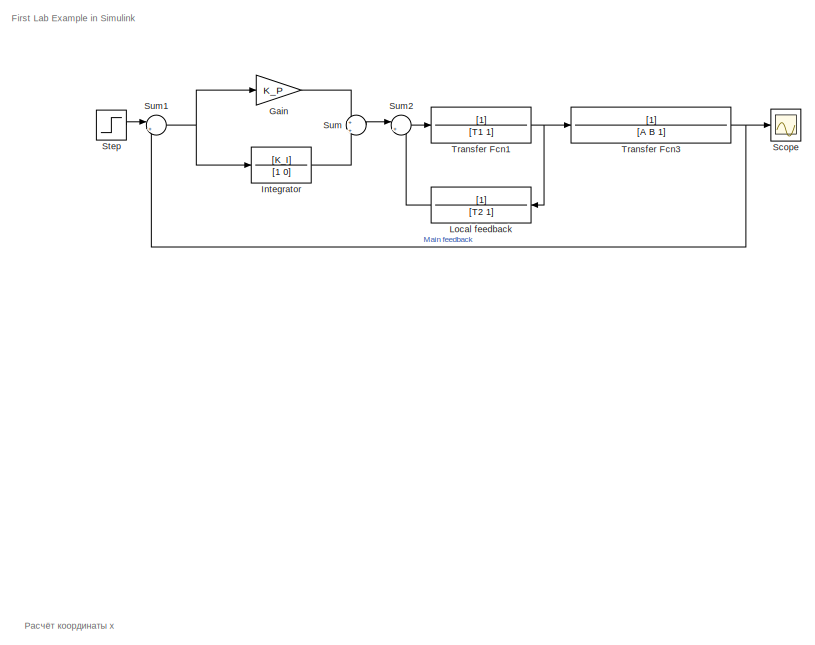
[diagram: root canvas - part 1/4, top left region]
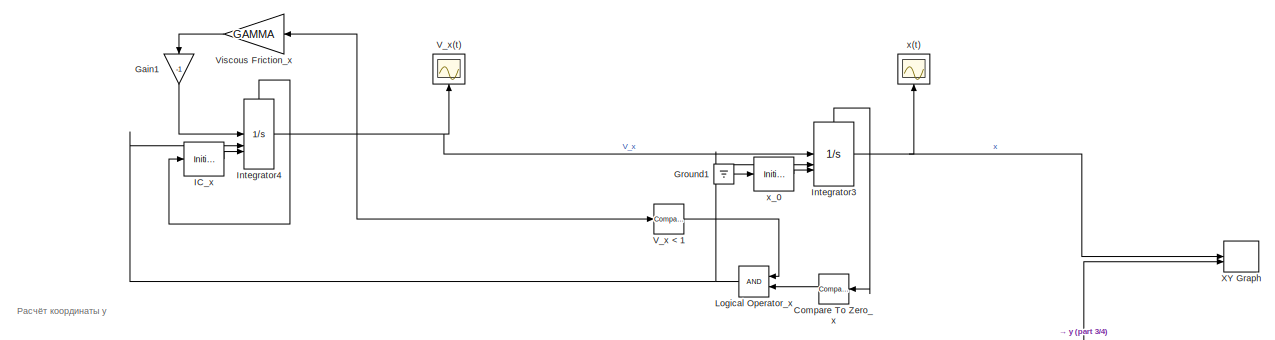
[diagram: root canvas - part 2/4, full width, middle band]
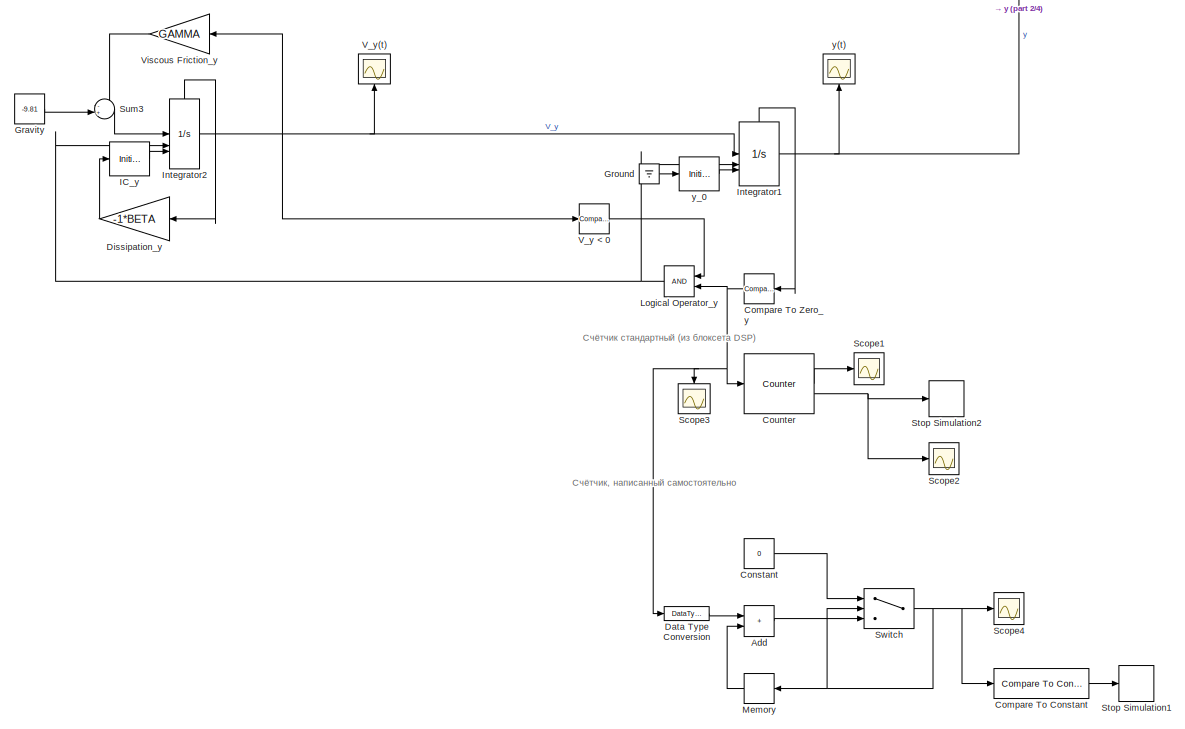
[diagram: root canvas - part 3/4, full width, middle band]
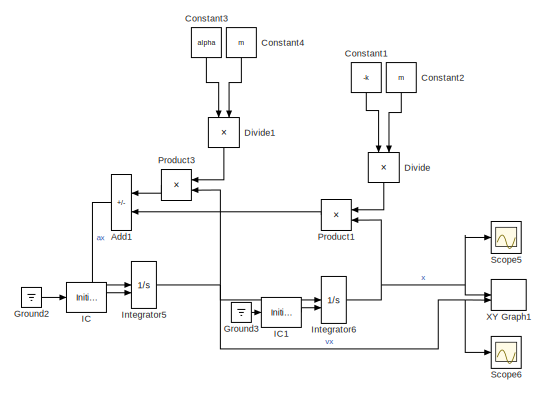
[diagram: root canvas - part 4/4, bottom left region]
MODEL slx_1bb1bf31e48f
KIND model
CONFIG AbsTol = auto
CONFIG EnableMultiTasking = off
CONFIG FixedStep = auto
CONFIG MaxStep = auto
CONFIG MinStep = auto
CONFIG RelTol = 1e-3
CONFIG SampleTimeConstraint = Unconstrained
CONFIG SolverName = ode23t
CONFIG StartTime = 0.0
CONFIG StopTime = 20
BLOCK [Sum] Add
  Commented = on
  IconShape = rectangular
BLOCK [Sum] Add1
  IconShape = rectangular
  Inputs = -+
  NameLocation = top
BLOCK [Reference] Compare To Constant  REF=simulink/Logic and Bit
Operations/Compare
To Constant
  Commented = on
  SourceBlock = simulink/Logic and Bit\nOperations/Compare\nTo Constant
  SourceType = Compare To Constant
BLOCK [Reference] Compare To Zero_x  REF=simulink/Logic and Bit
Operations/Compare
To Zero
  Commented = on
  NameLocation = top
  SourceBlock = simulink/Logic and Bit\nOperations/Compare\nTo Zero
  SourceType = Compare To Zero
BLOCK [Reference] Compare To Zero_y  REF=simulink/Logic and Bit
Operations/Compare
To Zero
  Commented = on
  NameLocation = top
  SourceBlock = simulink/Logic and Bit\nOperations/Compare\nTo Zero
  SourceType = Compare To Zero
BLOCK [Constant] Constant
  Commented = on
  Value = 0
BLOCK [Constant] Constant1
  NameLocation = left
  Value = -k
BLOCK [Constant] Constant2
  NameLocation = left
  Value = m
BLOCK [Constant] Constant3
  NameLocation = left
  Value = alpha
BLOCK [Constant] Constant4
  NameLocation = left
  Value = m
BLOCK [Reference] Counter  REF=dspswit3/Counter
  Commented = on
  SourceBlock = dspswit3/Counter
  SourceType = Counter
BLOCK [DataTypeConversion] Data Type Conversion
  Commented = on
  RndMeth = Floor
  SaturateOnIntegerOverflow = off
BLOCK [Gain] Dissipation_y
  Commented = on
  Gain = -1*BETA
BLOCK [Product] Divide
  Inputs = */
  NameLocation = left
BLOCK [Product] Divide1
  Inputs = */
  NameLocation = left
BLOCK [Gain] Gain
  Commented = on
  Gain = K_P
BLOCK [Gain] Gain1
  Commented = on
  Gain = -1
  NameLocation = left
BLOCK [Constant] Gravity
  Commented = on
  NameLocation = top
  Value = -9.81
BLOCK [Ground] Ground
  Commented = on
BLOCK [Ground] Ground1
  Commented = on
BLOCK [Ground] Ground2
BLOCK [Ground] Ground3
BLOCK [InitialCondition] IC
  Value = v_0
BLOCK [InitialCondition] IC1
  Value = x_0
BLOCK [InitialCondition] IC_x
  Commented = on
  Value = V * cos(ALPHA * pi / 180)
BLOCK [InitialCondition] IC_y
  Commented = on
  Value = V * sin(ALPHA * pi / 180)
BLOCK [TransferFcn] Integrator
  Commented = on
  Denominator = [1 0]
  Numerator = [K_I]
BLOCK [Integrator] Integrator1
  Commented = on
  ExternalReset = rising
  InitialConditionSource = external
  LimitOutput = on
  LowerSaturationLimit = 0
  ShowStatePort = on
BLOCK [Integrator] Integrator2
  Commented = on
  ExternalReset = rising
  InitialConditionSource = external
  ShowStatePort = on
BLOCK [Integrator] Integrator3
  Commented = on
  ExternalReset = rising
  InitialConditionSource = external
  LimitOutput = on
  LowerSaturationLimit = 0
  ShowStatePort = on
BLOCK [Integrator] Integrator4
  Commented = on
  ExternalReset = rising
  InitialConditionSource = external
  ShowStatePort = on
BLOCK [Integrator] Integrator5
  InitialConditionSource = external
BLOCK [Integrator] Integrator6
  InitialConditionSource = external
BLOCK [TransferFcn] Local feedback
  Commented = on
  Denominator = [T2 1]
  NameLocation = top
BLOCK [Logic] Logical Operator_x
  AllPortsSameDT = off
  Commented = on
  NameLocation = top
  OutDataTypeStr = boolean
BLOCK [Logic] Logical Operator_y
  AllPortsSameDT = off
  Commented = on
  NameLocation = top
  OutDataTypeStr = boolean
BLOCK [Memory] Memory
  Commented = on
  InitialCondition = -1
  NameLocation = top
BLOCK [Product] Product1
  NameLocation = top
BLOCK [Product] Product3
  NameLocation = top
BLOCK [Scope] Scope
  Commented = on
  Floating = off
  NumInputPorts = 1
  ScopeSpecificationString = Simulink.scopes.TimeScopeBlockCfg('CurrentConfiguration', extmgr.ConfigurationSet(extmgr.Configuration('Core','General UI',true),extmgr.Configuration('Core','Source UI',true),extmgr.Configuration('Sources','WiredSimulink',true),extmgr.Configuration('Visuals','Time Domain',true,'SerializedDisplays',{struct('MinYLimReal','-0.12524','MaxYLimReal','1.12713','YLabelReal','','MinYLimMag','0.00000','MaxY...<+1404ch>
BLOCK [Scope] Scope1
  Commented = on
  Floating = off
  NumInputPorts = 1
  ScopeSpecificationString = Simulink.scopes.TimeScopeBlockCfg('CurrentConfiguration', extmgr.ConfigurationSet(extmgr.Configuration('Core','General UI',true),extmgr.Configuration('Core','Source UI',true),extmgr.Configuration('Sources','WiredSimulink',true,'DataLoggingVariableName','ScopeData5'),extmgr.Configuration('Visuals','Time Domain',true,'SerializedDisplays',{struct('MinYLimReal','-1.25','MaxYLimReal','11.25','YLabelRea...<+1354ch>
BLOCK [Scope] Scope2
  Commented = on
  Floating = off
  NumInputPorts = 1
  ScopeSpecificationString = Simulink.scopes.TimeScopeBlockCfg('CurrentConfiguration', extmgr.ConfigurationSet(extmgr.Configuration('Core','General UI',true),extmgr.Configuration('Core','Source UI',true),extmgr.Configuration('Sources','WiredSimulink',true,'DataLoggingVariableName','ScopeData6'),extmgr.Configuration('Visuals','Time Domain',true,'SerializedDisplays',{struct('MinYLimReal','-0.125','MaxYLimReal','1.125','YLabelRe...<+1381ch>
BLOCK [Scope] Scope3
  Commented = on
  Floating = off
  NameLocation = left
  NumInputPorts = 1
  ScopeSpecificationString = Simulink.scopes.TimeScopeBlockCfg('CurrentConfiguration', extmgr.ConfigurationSet(extmgr.Configuration('Core','General UI',true),extmgr.Configuration('Core','Source UI',true),extmgr.Configuration('Sources','WiredSimulink',true,'DataLoggingVariableName','ScopeData7'),extmgr.Configuration('Visuals','Time Domain',true,'SerializedDisplays',{struct('MinYLimReal','-0.125','MaxYLimReal','1.125','YLabelRe...<+1483ch>
BLOCK [Scope] Scope4
  Commented = on
  Floating = off
  NumInputPorts = 1
  ScopeSpecificationString = Simulink.scopes.TimeScopeBlockCfg('CurrentConfiguration', extmgr.ConfigurationSet(extmgr.Configuration('Core','General UI',true),extmgr.Configuration('Core','Source UI',true),extmgr.Configuration('Sources','WiredSimulink',true,'DataLoggingVariableName','ScopeData8'),extmgr.Configuration('Visuals','Time Domain',true,'SerializedDisplays',{struct('MinYLimReal','-1.25','MaxYLimReal','11.25','YLabelRea...<+1351ch>
BLOCK [Scope] Scope5
  Floating = off
  NumInputPorts = 1
  ScopeSpecificationString = Simulink.scopes.TimeScopeBlockCfg('CurrentConfiguration', extmgr.ConfigurationSet(extmgr.Configuration('Core','General UI',true),extmgr.Configuration('Core','Source UI',true),extmgr.Configuration('Sources','WiredSimulink',true,'DataLoggingVariableName','ScopeData9'),extmgr.Configuration('Visuals','Time Domain',true,'SerializedDisplays',{struct('MinYLimReal','-3.8929','MaxYLimReal','4.05843','YLabe...<+1358ch>
BLOCK [Scope] Scope6
  Floating = off
  NumInputPorts = 1
  ScopeSpecificationString = Simulink.scopes.TimeScopeBlockCfg('CurrentConfiguration', extmgr.ConfigurationSet(extmgr.Configuration('Core','General UI',true),extmgr.Configuration('Core','Source UI',true),extmgr.Configuration('Sources','WiredSimulink',true,'DataLoggingVariableName','ScopeData10'),extmgr.Configuration('Visuals','Time Domain',true,'SerializedDisplays',{struct('MinYLimReal','-12.55524','MaxYLimReal','12.50614','Y...<+1368ch>
BLOCK [Step] Step
  Commented = on
  SampleTime = 0
  Time = 0.1
BLOCK [Stop] Stop Simulation1
  Commented = on
BLOCK [Stop] Stop Simulation2
  Commented = on
BLOCK [Sum] Sum
  Commented = on
  Inputs = +|+
  NameLocation = left
BLOCK [Sum] Sum1
  Commented = on
  Inputs = |+-
  NameLocation = top
BLOCK [Sum] Sum2
  Commented = on
  Inputs = |+-
  NameLocation = top
BLOCK [Sum] Sum3
  Commented = on
  Inputs = -+|
BLOCK [Switch] Switch
  Commented = on
  Criteria = u2 > Threshold
  InputSameDT = off
  SaturateOnIntegerOverflow = off
  Threshold = N_BOUNCES
BLOCK [TransferFcn] Transfer Fcn1
  Commented = on
  Denominator = [T1 1]
BLOCK [TransferFcn] Transfer Fcn3
  Commented = on
  Denominator = [A B 1]
BLOCK [Reference] V_x < 1  REF=simulink/Logic and Bit
Operations/Compare
To Zero
  Commented = on
  SourceBlock = simulink/Logic and Bit\nOperations/Compare\nTo Zero
  SourceType = Compare To Zero
BLOCK [Scope] V_x(t)
  Commented = on
  Floating = off
  NameLocation = top
  NumInputPorts = 1
  ScopeSpecificationString = Simulink.scopes.TimeScopeBlockCfg('CurrentConfiguration', extmgr.ConfigurationSet(extmgr.Configuration('Core','General UI',true),extmgr.Configuration('Core','Source UI',true),extmgr.Configuration('Sources','WiredSimulink',true,'DataLoggingVariableName','ScopeData3'),extmgr.Configuration('Visuals','Time Domain',true,'SerializedDisplays',{struct('MinYLimReal','-0.12825','MaxYLimReal','2.89002','YLab...<+1437ch>
BLOCK [Reference] V_y < 0  REF=simulink/Logic and Bit
Operations/Compare
To Zero
  Commented = on
  SourceBlock = simulink/Logic and Bit\nOperations/Compare\nTo Zero
  SourceType = Compare To Zero
BLOCK [Scope] V_y(t)
  Commented = on
  Floating = off
  NameLocation = top
  NumInputPorts = 1
  ScopeSpecificationString = Simulink.scopes.TimeScopeBlockCfg('CurrentConfiguration', extmgr.ConfigurationSet(extmgr.Configuration('Core','General UI',true),extmgr.Configuration('Core','Source UI',true),extmgr.Configuration('Sources','WiredSimulink',true,'DataLoggingVariableName','ScopeData2'),extmgr.Configuration('Visuals','Time Domain',true,'SerializedDisplays',{struct('MinYLimReal','-9.47544','MaxYLimReal','11.78534','YLa...<+1441ch>
BLOCK [Gain] Viscous Friction_x
  Commented = on
  Gain = GAMMA
  NameLocation = top
BLOCK [Gain] Viscous Friction_y
  Commented = on
  Gain = GAMMA
  NameLocation = top
BLOCK [Record] XY Graph
  Commented = on
  CompatibilityTag = XY
  FileSettingsInternal = {"entries":[{"content":{"excelSettings":{"content":{},"type":"Streamout.ExcelSettings"}},"type":"Streamout.FileSettingStorage","uuid":"8b932d15-5d1b-44a0-aee4-739872d0217d"}],"packageUris":["http://schema.mathworks.com/mf0/streamout_blocks/R2020a"],"version":"1.0"}
  Layout = [1 1]
  SignalsInternal = {"entries":[{"content":{},"type":"RecordBlkView.InputSignals","uuid":"97ee66de-383f-4640-baf3-7853e3ab4a83"}],"packageUris":["http://schema.mathworks.com/mf0/streamout_blocks/R2020a"],"version":"1.0"}
  VisualizationBindings = {"xyplotplugin":{"info":[{"series":[],"subplotID":1}]}}
BLOCK [Record] XY Graph1
  CompatibilityTag = XY
  FileSettingsInternal = {"entries":[{"content":{"excelSettings":{"content":{},"type":"Streamout.ExcelSettings"}},"type":"Streamout.FileSettingStorage","uuid":"c0ddccff-8cc1-44de-9fbf-99026fa81808"}],"packageUris":["http://schema.mathworks.com/mf0/streamout_blocks/R2020a"],"version":"1.0"}
  Layout = [1 1]
  SignalsInternal = {"entries":[{"content":{"signals":[{"content":{"blockPath":["demo_simulink_2022b/XY Graph1"],"dimensions":[1],"domain":"demo_simulink_2022b/XY Graph1","lineColor":"#a2142f","plots":[1],"port":1,"signalID":597,"signalName":"x"},"type":"RecordBlkView.Signal","uuid":"da48b154-fba1-42e9-a9ef-7762f4a936d7"},{"content":{"blockPath":["demo_simulink_2022b/XY Graph1"],"dimensions":[1],"domain":"demo_simuli...<+350ch>
  VisualizationBindings = {"xyplotplugin":{"info":[{"series":[{"bindingParametersList":[{"parameter":"X-Axis","signalID":597,"signalName":"x"},{"parameter":"Y-Axis","signalID":600,"signalName":"vx"}],"seriesID":24344}],"subplotID":1}]}}
BLOCK [Scope] x(t)
  Commented = on
  Floating = off
  NameLocation = top
  NumInputPorts = 1
  ScopeSpecificationString = Simulink.scopes.TimeScopeBlockCfg('CurrentConfiguration', extmgr.ConfigurationSet(extmgr.Configuration('Core','General UI',true),extmgr.Configuration('Core','Source UI',true),extmgr.Configuration('Sources','WiredSimulink',true,'DataLoggingVariableName','ScopeData4'),extmgr.Configuration('Visuals','Time Domain',true,'SerializedDisplays',{struct('MinYLimReal','-0.60693','MaxYLimReal','5.46234','YLab...<+1436ch>
BLOCK [InitialCondition] x_0
  Commented = on
  Value = 0
BLOCK [Scope] y(t)
  Commented = on
  Floating = off
  NameLocation = top
  NumInputPorts = 1
  ScopeSpecificationString = Simulink.scopes.TimeScopeBlockCfg('CurrentConfiguration', extmgr.ConfigurationSet(extmgr.Configuration('Core','General UI',true),extmgr.Configuration('Core','Source UI',true),extmgr.Configuration('Sources','WiredSimulink',true,'DataLoggingVariableName','ScopeData1'),extmgr.Configuration('Visuals','Time Domain',true,'SerializedDisplays',{struct('MinYLimReal','-0.60693','MaxYLimReal','5.46234','YLab...<+1436ch>
BLOCK [InitialCondition] y_0
  Commented = on
  Value = 0
ANNOTATION (root): First Lab Example in Simulink
ANNOTATION (root): Расчёт координаты x
ANNOTATION (root): Расчёт координаты y
ANNOTATION (root): Счётчик стандартный (из блоксета DSP)
ANNOTATION (root): Счётчик, написанный самостоятельно
LINE Add1:1 -> Integrator5:1
LINE Add:1 -> Switch:3
LINE Compare To Constant:1 -> Stop Simulation1:1
LINE Compare To Zero_x:1 -> Logical Operator_x:2
NET Compare To Zero_y:1 -> Counter:1, Data Type Conversion:1, Logical Operator_y:2, Scope3:1
LINE Constant1:1 -> Divide:1
LINE Constant2:1 -> Divide:2
LINE Constant3:1 -> Divide1:1
LINE Constant4:1 -> Divide1:2
LINE Constant:1 -> Switch:1
LINE Counter:1 -> Scope1:1
NET Counter:2 -> Scope2:1, Stop Simulation2:1
LINE Data Type Conversion:1 -> Add:1
LINE Dissipation_y:1 -> IC_y:1
LINE Divide1:1 -> Product3:1
LINE Divide:1 -> Product1:1
LINE Gain1:1 -> Integrator4:1
LINE Gain:1 -> Sum:1
LINE Gravity:1 -> Sum3:2
LINE Ground1:1 -> x_0:1
LINE Ground2:1 -> IC:1
LINE Ground3:1 -> IC1:1
LINE Ground:1 -> y_0:1
LINE IC1:1 -> Integrator6:2
LINE IC:1 -> Integrator5:2
LINE IC_x:1 -> Integrator4:3
LINE IC_y:1 -> Integrator2:3
NET Integrator1:1 -> XY Graph:2, y(t):1
LINE Integrator1:state -> Compare To Zero_y:1
NET Integrator2:1 -> Integrator1:1, V_y < 0:1, V_y(t):1, Viscous Friction_y:1
LINE Integrator2:state -> Dissipation_y:1
NET Integrator3:1 -> XY Graph:1, x(t):1
LINE Integrator3:state -> Compare To Zero_x:1
NET Integrator4:1 -> Integrator3:1, V_x < 1:1, V_x(t):1, Viscous Friction_x:1
LINE Integrator4:state -> IC_x:1
NET Integrator5:1 -> Integrator6:1, Product3:2, Scope6:1, XY Graph1:2
NET Integrator6:1 -> Product1:2, Scope5:1, XY Graph1:1
LINE Integrator:1 -> Sum:2
LINE Local feedback:1 -> Sum2:2
NET Logical Operator_x:1 -> Integrator3:2, Integrator4:2
NET Logical Operator_y:1 -> Integrator1:2, Integrator2:2
LINE Memory:1 -> Add:2
LINE Product1:1 -> Add1:2
LINE Product3:1 -> Add1:1
LINE Step:1 -> Sum1:1
NET Sum1:1 -> Gain:1, Integrator:1
LINE Sum2:1 -> Transfer Fcn1:1
LINE Sum3:1 -> Integrator2:1
LINE Sum:1 -> Sum2:1
NET Switch:1 -> Compare To Constant:1, Memory:1, Scope4:1, Switch:2
NET Transfer Fcn1:1 -> Local feedback:1, Transfer Fcn3:1
NET Transfer Fcn3:1 -> Scope:1, Sum1:2
LINE V_x < 1:1 -> Logical Operator_x:1
LINE V_y < 0:1 -> Logical Operator_y:1
LINE Viscous Friction_x:1 -> Gain1:1
LINE Viscous Friction_y:1 -> Sum3:1
LINE x_0:1 -> Integrator3:3
LINE y_0:1 -> Integrator1:3
note: NET lines group one-source signal fan-out (src -> all destinations, sorted); 1:1 wires keep LINE
